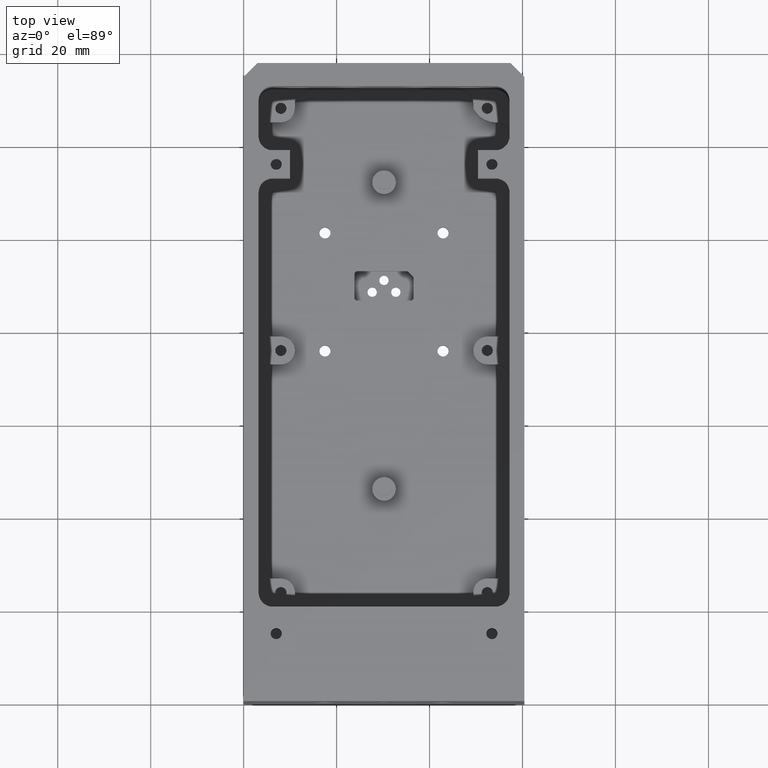
[diagram: clean part render]
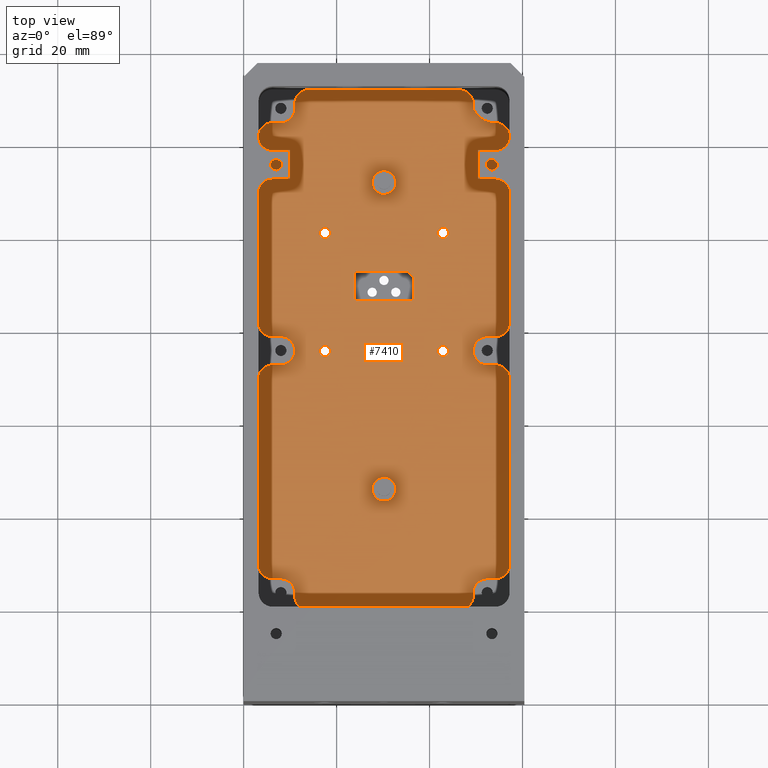
[diagram: same view with one face highlighted and labeled with its STEP entity id]
A machine part, top view. The second image highlights one B-rep face of the part: STEP entity #7410.
In plain terms, the highlighted planar face has unit normal (-0, 0, 1).
Its self-contained STEP definition (entity closure, byte-faithful):
#84 = CIRCLE ( 'NONE', #30902, 0.6000000000000033100 ) ;
#106 = AXIS2_PLACEMENT_3D ( 'NONE', #25461, #6044, #28690 ) ;
#255 = AXIS2_PLACEMENT_3D ( 'NONE', #16797, #39413, #20041 ) ;
#435 = VERTEX_POINT ( 'NONE', #30624 ) ;
#486 = VECTOR ( 'NONE', #12508, 1000.000000000000000 ) ;
#530 = ORIENTED_EDGE ( 'NONE', *, *, #22711, .F. ) ;
#577 = DIRECTION ( 'NONE',  ( 1.000000000000000000, 0.0000000000000000000, 0.0000000000000000000 ) ) ;
#620 = ORIENTED_EDGE ( 'NONE', *, *, #9585, .F. ) ;
#791 = AXIS2_PLACEMENT_3D ( 'NONE', #8391, #31015, #11651 ) ;
#970 = DIRECTION ( 'NONE',  ( 1.000000000000000000, 0.0000000000000000000, 0.0000000000000000000 ) ) ;
#1018 = DIRECTION ( 'NONE',  ( 0.0000000000000000000, 0.0000000000000000000, 1.000000000000000000 ) ) ;
#1048 = DIRECTION ( 'NONE',  ( 0.0000000000000000000, -0.0000000000000000000, -1.000000000000000000 ) ) ;
#1049 = AXIS2_PLACEMENT_3D ( 'NONE', #13863, #36470, #17111 ) ;
#1189 = EDGE_CURVE ( 'NONE', #34276, #34067, #9284, .T. ) ;
#1262 = CARTESIAN_POINT ( 'NONE',  ( 35.95000000000000300, 91.72147186254780100, -42.59999999999999400 ) ) ;
#1431 = EDGE_CURVE ( 'NONE', #23782, #24907, #8789, .T. ) ;
#1545 = DIRECTION ( 'NONE',  ( -0.0000000000000000000, 0.0000000000000000000, 1.000000000000000000 ) ) ;
#1676 = LINE ( 'NONE', #4961, #35088 ) ;
#1727 = VERTEX_POINT ( 'NONE', #37510 ) ;
#1757 = DIRECTION ( 'NONE',  ( -0.0000000000000000000, 0.0000000000000000000, 1.000000000000000000 ) ) ;
#1781 = FACE_OUTER_BOUND ( 'NONE', #18252, .T. ) ;
#1788 = ORIENTED_EDGE ( 'NONE', *, *, #1431, .F. ) ;
#2025 = VERTEX_POINT ( 'NONE', #19506 ) ;
#2106 = EDGE_CURVE ( 'NONE', #7414, #38659, #6684, .T. ) ;
#2113 = ORIENTED_EDGE ( 'NONE', *, *, #38163, .T. ) ;
#2324 = LINE ( 'NONE', #3760, #35773 ) ;
#2516 = VECTOR ( 'NONE', #16301, 1000.000000000000000 ) ;
#2635 = CARTESIAN_POINT ( 'NONE',  ( 35.94999999999999600, 86.88999999997165000, -42.59999999999999400 ) ) ;
#2731 = DIRECTION ( 'NONE',  ( 1.000000000000000000, 0.0000000000000000000, 0.0000000000000000000 ) ) ;
#2843 = EDGE_CURVE ( 'NONE', #25429, #38102, #21865, .T. ) ;
#2937 = CARTESIAN_POINT ( 'NONE',  ( 24.44999999999999900, 92.63999999997165000, -42.59999999999999400 ) ) ;
#2973 = ORIENTED_EDGE ( 'NONE', *, *, #14207, .F. ) ;
#3038 = EDGE_CURVE ( 'NONE', #1727, #25905, #14792, .T. ) ;
#3066 = DIRECTION ( 'NONE',  ( -0.0000000000000000000, 0.0000000000000000000, 1.000000000000000000 ) ) ;
#3185 = ORIENTED_EDGE ( 'NONE', *, *, #38572, .F. ) ;
#3376 = CARTESIAN_POINT ( 'NONE',  ( 24.44999999999999900, 87.48999999997165800, -42.59999999999999400 ) ) ;
#3457 = EDGE_CURVE ( 'NONE', #36702, #25780, #38997, .T. ) ;
#3491 = DIRECTION ( 'NONE',  ( 0.0000000000000000000, 1.000000000000000000, 0.0000000000000000000 ) ) ;
#3619 = EDGE_CURVE ( 'NONE', #9269, #20713, #9127, .T. ) ;
#3670 = VECTOR ( 'NONE', #7356, 1000.000000000000000 ) ;
#3760 = CARTESIAN_POINT ( 'NONE',  ( 3.200000000000017100, 4.829856545643110200E-016, -42.59999999999999400 ) ) ;
#3808 = VERTEX_POINT ( 'NONE', #23378 ) ;
#3809 = FACE_BOUND ( 'NONE', #13916, .T. ) ;
#3830 = VECTOR ( 'NONE', #19050, 1000.000000000000000 ) ;
#3901 = VERTEX_POINT ( 'NONE', #27334 ) ;
#4278 = CIRCLE ( 'NONE', #31151, 3.000000000000000900 ) ;
#4547 = DIRECTION ( 'NONE',  ( 1.000000000000000000, 0.0000000000000000000, 0.0000000000000000000 ) ) ;
#4561 = AXIS2_PLACEMENT_3D ( 'NONE', #20985, #1545, #24240 ) ;
#4596 = CIRCLE ( 'NONE', #22683, 0.6000000000000033100 ) ;
#4666 = CARTESIAN_POINT ( 'NONE',  ( 6.200000000000002000, 73.09999999999996600, -42.59999999999999400 ) ) ;
#4684 = VERTEX_POINT ( 'NONE', #10005 ) ;
#4951 = CIRCLE ( 'NONE', #22733, 2.540000000000000500 ) ;
#4961 = CARTESIAN_POINT ( 'NONE',  ( 57.20000000000000300, 0.0000000000000000000, -42.59999999999999400 ) ) ;
#5476 = DIRECTION ( 'NONE',  ( -1.000000000000000000, 1.899207940138112900E-015, 0.0000000000000000000 ) ) ;
#5475 = DIRECTION ( 'NONE',  ( 1.000000000000000000, 0.0000000000000000000, 0.0000000000000000000 ) ) ;
#5487 = EDGE_CURVE ( 'NONE', #24482, #24927, #26722, .T. ) ;
#5590 = ORIENTED_EDGE ( 'NONE', *, *, #20575, .T. ) ;
#5899 = EDGE_CURVE ( 'NONE', #7269, #38102, #32763, .T. ) ;
#6044 = DIRECTION ( 'NONE',  ( 0.0000000000000000000, 0.0000000000000000000, 1.000000000000000000 ) ) ;
#6183 = CARTESIAN_POINT ( 'NONE',  ( 57.20000000000000300, 122.1999999999999700, -42.59999999999999400 ) ) ;
#6220 = DIRECTION ( 'NONE',  ( 1.000000000000000000, 0.0000000000000000000, 0.0000000000000000000 ) ) ;
#6253 = ORIENTED_EDGE ( 'NONE', *, *, #25276, .F. ) ;
#6266 = DIRECTION ( 'NONE',  ( 0.0000000000000000000, -1.000000000000000000, 0.0000000000000000000 ) ) ;
#6307 = CIRCLE ( 'NONE', #13587, 1.200000000000003100 ) ;
#6375 = ORIENTED_EDGE ( 'NONE', *, *, #6790, .T. ) ;
#6468 = CARTESIAN_POINT ( 'NONE',  ( 35.45573593128807500, 93.06426406868358500, -42.59999999999999400 ) ) ;
#6514 = CARTESIAN_POINT ( 'NONE',  ( 8.000000000000005300, 79.09999999999998000, -42.59999999999999400 ) ) ;
#6651 = DIRECTION ( 'NONE',  ( 1.000000000000000000, 0.0000000000000000000, 0.0000000000000000000 ) ) ;
#6684 = CIRCLE ( 'NONE', #1049, 2.540000000000000500 ) ;
#6790 = EDGE_CURVE ( 'NONE', #7269, #24482, #26636, .T. ) ;
#6936 = ORIENTED_EDGE ( 'NONE', *, *, #24807, .F. ) ;
#6990 = VERTEX_POINT ( 'NONE', #7523 ) ;
#6999 = LINE ( 'NONE', #15955, #15624 ) ;
#7053 = CARTESIAN_POINT ( 'NONE',  ( 3.200000000000004600, 82.09999999999998000, -42.59999999999999400 ) ) ;
#7130 = CARTESIAN_POINT ( 'NONE',  ( 52.37321374946373000, 23.99999999999996800, -42.59999999999999400 ) ) ;
#7144 = LINE ( 'NONE', #38255, #40584 ) ;
#7160 = EDGE_CURVE ( 'NONE', #16941, #16858, #17554, .T. ) ;
#7196 = DIRECTION ( 'NONE',  ( -0.0000000000000000000, 0.0000000000000000000, 1.000000000000000000 ) ) ;
#7269 = VERTEX_POINT ( 'NONE', #31678 ) ;
#7294 = DIRECTION ( 'NONE',  ( 0.0000000000000000000, -0.0000000000000000000, -1.000000000000000000 ) ) ;
#7356 = DIRECTION ( 'NONE',  ( 0.0000000000000000000, -1.000000000000000000, 0.0000000000000000000 ) ) ;
#7410 = ADVANCED_FACE ( 'NONE', ( #36222, #3809, #27635, #11447, #19025, #10403, #1781, #35190 ), #41875, .T. ) ;
#7414 = VERTEX_POINT ( 'NONE', #19246 ) ;
#7517 = VERTEX_POINT ( 'NONE', #30450 ) ;
#7523 = CARTESIAN_POINT ( 'NONE',  ( 11.00000000000000700, 76.09999999999998000, -42.59999999999999400 ) ) ;
#7533 = EDGE_CURVE ( 'NONE', #27676, #435, #41789, .T. ) ;
#7610 = ORIENTED_EDGE ( 'NONE', *, *, #8248, .T. ) ;
#7773 = LINE ( 'NONE', #26171, #33591 ) ;
#7867 = VERTEX_POINT ( 'NONE', #17001 ) ;
#7869 = AXIS2_PLACEMENT_3D ( 'NONE', #31785, #35072, #31929 ) ;
#7878 = ORIENTED_EDGE ( 'NONE', *, *, #11898, .F. ) ;
#7899 = ORIENTED_EDGE ( 'NONE', *, *, #23798, .F. ) ;
#7955 = CARTESIAN_POINT ( 'NONE',  ( 49.40000000000001300, 24.39999999999997000, -42.59999999999999400 ) ) ;
#8122 = CARTESIAN_POINT ( 'NONE',  ( 14.00000000000000200, 129.2999999999999800, -42.59999999999999400 ) ) ;
#8235 = ORIENTED_EDGE ( 'NONE', *, *, #42058, .T. ) ;
#8248 = EDGE_CURVE ( 'NONE', #22108, #25429, #4278, .T. ) ;
#8276 = ORIENTED_EDGE ( 'NONE', *, *, #3619, .T. ) ;
#8337 = VERTEX_POINT ( 'NONE', #11146 ) ;
#8391 = CARTESIAN_POINT ( 'NONE',  ( 6.200000000000002000, 70.09999999999996600, -42.59999999999999400 ) ) ;
#8404 = ORIENTED_EDGE ( 'NONE', *, *, #31229, .F. ) ;
#8789 = CIRCLE ( 'NONE', #9188, 3.000000000000002700 ) ;
#8894 = DIRECTION ( 'NONE',  ( 0.0000000000000000000, 0.0000000000000000000, 1.000000000000000000 ) ) ;
#8957 = EDGE_CURVE ( 'NONE', #3808, #22108, #10827, .T. ) ;
#9125 = AXIS2_PLACEMENT_3D ( 'NONE', #26659, #7294, #29907 ) ;
#9127 = LINE ( 'NONE', #28619, #486 ) ;
#9188 = AXIS2_PLACEMENT_3D ( 'NONE', #34660, #14463, #39335 ) ;
#9257 = CIRCLE ( 'NONE', #41432, 3.000000000000002700 ) ;
#9269 = VERTEX_POINT ( 'NONE', #28210 ) ;
#9284 = CIRCLE ( 'NONE', #7869, 1.200000000000003100 ) ;
#9501 = VERTEX_POINT ( 'NONE', #23235 ) ;
#9585 = EDGE_CURVE ( 'NONE', #31878, #13632, #84, .T. ) ;
#9699 = VERTEX_POINT ( 'NONE', #39488 ) ;
#9736 = AXIS2_PLACEMENT_3D ( 'NONE', #7130, #29744, #10379 ) ;
#9753 = EDGE_LOOP ( 'NONE', ( #40256, #21975 ) ) ;
#9972 = CARTESIAN_POINT ( 'NONE',  ( 54.20000000000000300, 125.1999999999999700, -42.59999999999999400 ) ) ;
#10005 = CARTESIAN_POINT ( 'NONE',  ( 35.03147186257614700, 93.23999999997164400, -42.59999999999999400 ) ) ;
#10106 = AXIS2_PLACEMENT_3D ( 'NONE', #17254, #39879, #20488 ) ;
#10161 = LINE ( 'NONE', #19159, #16752 ) ;
#10228 = CARTESIAN_POINT ( 'NONE',  ( 6.173213749463703200, 29.99999999999997500, -42.59999999999999400 ) ) ;
#10379 = DIRECTION ( 'NONE',  ( 1.000000000000000000, 0.0000000000000000000, 0.0000000000000000000 ) ) ;
#10403 = FACE_BOUND ( 'NONE', #16344, .T. ) ;
#10463 = CARTESIAN_POINT ( 'NONE',  ( 11.00000000000000000, 128.1999999999999900, -42.59999999999999400 ) ) ;
#10688 = DIRECTION ( 'NONE',  ( 0.0000000000000000000, -0.0000000000000000000, -1.000000000000000000 ) ) ;
#10827 = LINE ( 'NONE', #20166, #12859 ) ;
#11009 = CARTESIAN_POINT ( 'NONE',  ( 42.89999999999999900, 76.09999999999998000, -42.59999999999999400 ) ) ;
#11084 = CIRCLE ( 'NONE', #33148, 1.200000000000003100 ) ;
#11146 = CARTESIAN_POINT ( 'NONE',  ( 44.10000000000000100, 101.4999999999999900, -42.59999999999999400 ) ) ;
#11153 = ORIENTED_EDGE ( 'NONE', *, *, #14961, .F. ) ;
#11163 = EDGE_CURVE ( 'NONE', #27676, #15118, #10161, .T. ) ;
#11227 = CIRCLE ( 'NONE', #41654, 2.540000000000000500 ) ;
#11265 = CIRCLE ( 'NONE', #31067, 3.000000000000000900 ) ;
#11307 = CARTESIAN_POINT ( 'NONE',  ( 30.19999999999999900, 112.2999999999999700, -42.59999999999999400 ) ) ;
#11321 = CARTESIAN_POINT ( 'NONE',  ( 23.84999999999999800, 92.63999999997165000, -42.59999999999999400 ) ) ;
#11343 = EDGE_CURVE ( 'NONE', #16941, #36702, #30919, .T. ) ;
#11385 = DIRECTION ( 'NONE',  ( 1.000000000000000000, 0.0000000000000000000, 0.0000000000000000000 ) ) ;
#11447 = FACE_BOUND ( 'NONE', #40938, .T. ) ;
#11474 = LINE ( 'NONE', #38266, #3830 ) ;
#11489 = EDGE_CURVE ( 'NONE', #20036, #9269, #26856, .T. ) ;
#11529 = CARTESIAN_POINT ( 'NONE',  ( 0.0000000000000000000, 20.29999999999997200, -42.59999999999999400 ) ) ;
#11651 = DIRECTION ( 'NONE',  ( 1.000000000000000000, 0.0000000000000000000, 0.0000000000000000000 ) ) ;
#11776 = CARTESIAN_POINT ( 'NONE',  ( 6.200000000000001100, 122.1999999999999700, -42.59999999999999400 ) ) ;
#11870 = CARTESIAN_POINT ( 'NONE',  ( 0.0000000000000000000, 73.09999999999996600, -42.59999999999999400 ) ) ;
#11898 = EDGE_CURVE ( 'NONE', #25385, #38111, #15697, .T. ) ;
#11951 = CARTESIAN_POINT ( 'NONE',  ( 17.50000000000000400, 76.09999999999998000, -42.59999999999999400 ) ) ;
#11987 = CIRCLE ( 'NONE', #106, 2.540000000000000500 ) ;
#11994 = VERTEX_POINT ( 'NONE', #36314 ) ;
#12126 = AXIS2_PLACEMENT_3D ( 'NONE', #26577, #7196, #29817 ) ;
#12231 = VECTOR ( 'NONE', #23299, 1000.000000000000000 ) ;
#12292 = CARTESIAN_POINT ( 'NONE',  ( 42.89999999999999900, 101.4999999999999900, -42.59999999999999400 ) ) ;
#12351 = AXIS2_PLACEMENT_3D ( 'NONE', #10228, #32859, #13508 ) ;
#12473 = CARTESIAN_POINT ( 'NONE',  ( 42.89999999999999900, 76.09999999999998000, -42.59999999999999400 ) ) ;
#12508 = DIRECTION ( 'NONE',  ( 1.509330170513463700E-016, -1.000000000000000000, 0.0000000000000000000 ) ) ;
#12627 = CARTESIAN_POINT ( 'NONE',  ( 8.000000000000001800, 76.09999999999998000, -42.59999999999999400 ) ) ;
#12856 = VERTEX_POINT ( 'NONE', #32384 ) ;
#12859 = VECTOR ( 'NONE', #39549, 1000.000000000000000 ) ;
#13021 = ORIENTED_EDGE ( 'NONE', *, *, #40786, .T. ) ;
#13079 = EDGE_CURVE ( 'NONE', #8337, #35330, #36448, .T. ) ;
#13168 = CARTESIAN_POINT ( 'NONE',  ( 7.999999999999998200, 128.1999999999999900, -42.59999999999999400 ) ) ;
#13288 = VERTEX_POINT ( 'NONE', #39150 ) ;
#13453 = EDGE_CURVE ( 'NONE', #21642, #23270, #34895, .T. ) ;
#13459 = CIRCLE ( 'NONE', #38223, 3.000000000000002700 ) ;
#13498 = CARTESIAN_POINT ( 'NONE',  ( 0.0000000000000000000, 132.2999999999999800, -42.59999999999999400 ) ) ;
#13508 = DIRECTION ( 'NONE',  ( 1.000000000000000000, 1.156482317317870300E-015, 0.0000000000000000000 ) ) ;
#13587 = AXIS2_PLACEMENT_3D ( 'NONE', #11951, #34599, #15220 ) ;
#13632 = VERTEX_POINT ( 'NONE', #40723 ) ;
#13863 = CARTESIAN_POINT ( 'NONE',  ( 30.19999999999999900, 112.2999999999999700, -42.59999999999999400 ) ) ;
#13884 = CARTESIAN_POINT ( 'NONE',  ( 49.39999999999999900, 0.0000000000000000000, -42.59999999999999400 ) ) ;
#13916 = EDGE_LOOP ( 'NONE', ( #26566, #7899 ) ) ;
#14207 = EDGE_CURVE ( 'NONE', #24515, #28957, #6999, .T. ) ;
#14278 = DIRECTION ( 'NONE',  ( 1.000000000000000000, 0.0000000000000000000, 0.0000000000000000000 ) ) ;
#14330 = EDGE_CURVE ( 'NONE', #31931, #24927, #20937, .T. ) ;
#14463 = DIRECTION ( 'NONE',  ( 0.0000000000000000000, -0.0000000000000000000, -1.000000000000000000 ) ) ;
#14557 = VERTEX_POINT ( 'NONE', #29457 ) ;
#14581 = DIRECTION ( 'NONE',  ( 1.000000000000000000, 0.0000000000000000000, 0.0000000000000000000 ) ) ;
#14597 = DIRECTION ( 'NONE',  ( 6.736790197968199100E-016, -1.000000000000000000, 0.0000000000000000000 ) ) ;
#14637 = EDGE_CURVE ( 'NONE', #3808, #20713, #37616, .T. ) ;
#14745 = ORIENTED_EDGE ( 'NONE', *, *, #7160, .F. ) ;
#14748 = AXIS2_PLACEMENT_3D ( 'NONE', #39392, #20021, #577 ) ;
#14758 = CARTESIAN_POINT ( 'NONE',  ( 46.39999999999999900, 129.2999999999999800, -42.59999999999999400 ) ) ;
#14782 = CARTESIAN_POINT ( 'NONE',  ( 57.20000000000000300, 29.99999999999997200, -42.59999999999999400 ) ) ;
#14792 = LINE ( 'NONE', #37577, #39551 ) ;
#14846 = VECTOR ( 'NONE', #29209, 1000.000000000000100 ) ;
#14952 = EDGE_CURVE ( 'NONE', #28957, #2025, #29455, .T. ) ;
#14961 = EDGE_CURVE ( 'NONE', #38302, #25385, #38077, .T. ) ;
#14969 = EDGE_CURVE ( 'NONE', #1727, #32334, #11265, .T. ) ;
#15007 = AXIS2_PLACEMENT_3D ( 'NONE', #11009, #33644, #14278 ) ;
#15040 = DIRECTION ( 'NONE',  ( 1.000000000000000000, 0.0000000000000000000, 0.0000000000000000000 ) ) ;
#15118 = VERTEX_POINT ( 'NONE', #10463 ) ;
#15174 = ORIENTED_EDGE ( 'NONE', *, *, #2106, .F. ) ;
#15220 = DIRECTION ( 'NONE',  ( 1.000000000000000000, 0.0000000000000000000, 0.0000000000000000000 ) ) ;
#15425 = LINE ( 'NONE', #32545, #23008 ) ;
#15440 = CARTESIAN_POINT ( 'NONE',  ( 11.00000000000001200, 23.29999999999996900, -42.59999999999999400 ) ) ;
#15488 = CARTESIAN_POINT ( 'NONE',  ( 57.20000000000000300, 82.09999999999998000, -42.59999999999999400 ) ) ;
#15511 = ORIENTED_EDGE ( 'NONE', *, *, #7533, .F. ) ;
#15559 = DIRECTION ( 'NONE',  ( 1.000000000000000000, 0.0000000000000000000, 0.0000000000000000000 ) ) ;
#15624 = VECTOR ( 'NONE', #28949, 1000.000000000000000 ) ;
#15640 = DIRECTION ( 'NONE',  ( -1.000000000000000000, -0.0000000000000000000, -0.0000000000000000000 ) ) ;
#15697 = LINE ( 'NONE', #11321, #40519 ) ;
#15727 = DIRECTION ( 'NONE',  ( 1.000000000000000000, 0.0000000000000000000, 0.0000000000000000000 ) ) ;
#15784 = EDGE_CURVE ( 'NONE', #4684, #38302, #7144, .T. ) ;
#15866 = CARTESIAN_POINT ( 'NONE',  ( 35.94999999999999600, 87.48999999997167300, -42.59999999999999400 ) ) ;
#15889 = DIRECTION ( 'NONE',  ( 1.000000000000000000, 0.0000000000000000000, 0.0000000000000000000 ) ) ;
#15955 = CARTESIAN_POINT ( 'NONE',  ( 24.44999999999999900, 86.88999999997165000, -42.59999999999999400 ) ) ;
#16104 = CARTESIAN_POINT ( 'NONE',  ( 49.40000000000001300, 23.29999999999996200, -42.59999999999999400 ) ) ;
#16219 = CARTESIAN_POINT ( 'NONE',  ( 11.00000000000001200, 24.39999999999997000, -42.59999999999999400 ) ) ;
#16301 = DIRECTION ( 'NONE',  ( 1.000000000000000000, 0.0000000000000000000, 0.0000000000000000000 ) ) ;
#16344 = EDGE_LOOP ( 'NONE', ( #620, #530, #20292, #2973, #36975, #7878, #11153, #20234, #36398, #22139 ) ) ;
#16359 = EDGE_CURVE ( 'NONE', #15118, #11994, #24920, .T. ) ;
#16413 = DIRECTION ( 'NONE',  ( 1.000000000000000000, 0.0000000000000000000, 0.0000000000000000000 ) ) ;
#16545 = EDGE_CURVE ( 'NONE', #38659, #7414, #11227, .T. ) ;
#16750 = ORIENTED_EDGE ( 'NONE', *, *, #14637, .F. ) ;
#16752 = VECTOR ( 'NONE', #6266, 1000.000000000000000 ) ;
#16797 = CARTESIAN_POINT ( 'NONE',  ( 54.19999999999999600, 29.99999999999997200, -42.59999999999999400 ) ) ;
#16858 = VERTEX_POINT ( 'NONE', #35297 ) ;
#16941 = VERTEX_POINT ( 'NONE', #20022 ) ;
#16979 = CARTESIAN_POINT ( 'NONE',  ( 30.19999999999999900, 46.29999999999996900, -42.59999999999999400 ) ) ;
#17001 = CARTESIAN_POINT ( 'NONE',  ( 32.73999999999999500, 46.29999999999996900, -42.59999999999999400 ) ) ;
#17013 = VERTEX_POINT ( 'NONE', #36849 ) ;
#17111 = DIRECTION ( 'NONE',  ( 1.000000000000000000, 0.0000000000000000000, 0.0000000000000000000 ) ) ;
#17243 = EDGE_CURVE ( 'NONE', #38111, #24515, #4596, .T. ) ;
#17244 = EDGE_CURVE ( 'NONE', #17013, #11994, #20801, .T. ) ;
#17254 = CARTESIAN_POINT ( 'NONE',  ( 8.000000000000001800, 76.09999999999998000, -42.59999999999999400 ) ) ;
#17554 = CIRCLE ( 'NONE', #4561, 3.000000000000002700 ) ;
#17877 = CARTESIAN_POINT ( 'NONE',  ( 46.40000000000001300, 20.29999999999997200, -42.59999999999999400 ) ) ;
#17916 = ORIENTED_EDGE ( 'NONE', *, *, #3038, .T. ) ;
#17932 = DIRECTION ( 'NONE',  ( 1.000000000000000000, 0.0000000000000000000, 0.0000000000000000000 ) ) ;
#18029 = CARTESIAN_POINT ( 'NONE',  ( 24.44999999999999900, 86.88999999997165000, -42.59999999999999400 ) ) ;
#18030 = DIRECTION ( 'NONE',  ( 1.000000000000000000, 0.0000000000000000000, 0.0000000000000000000 ) ) ;
#18252 = EDGE_LOOP ( 'NONE', ( #8404, #3185, #14745, #18369, #33262, #27007, #1788, #2113, #29511, #8235, #13021, #15511, #18721, #26852, #35133, #21576, #5590, #37563, #17916, #30364, #6936, #25634, #36392, #8276, #16750, #32079, #7610, #41997, #36028, #6375, #27740, #41203, #20133, #6253, #29194, #23776 ) ) ;
#18369 = ORIENTED_EDGE ( 'NONE', *, *, #11343, .T. ) ;
#18407 = CARTESIAN_POINT ( 'NONE',  ( 41.70000000000000300, 76.09999999999998000, -42.59999999999999400 ) ) ;
#18423 = ORIENTED_EDGE ( 'NONE', *, *, #35164, .F. ) ;
#18535 = ORIENTED_EDGE ( 'NONE', *, *, #13453, .F. ) ;
#18721 = ORIENTED_EDGE ( 'NONE', *, *, #11163, .T. ) ;
#18877 = LINE ( 'NONE', #28130, #35054 ) ;
#18965 = DIRECTION ( 'NONE',  ( 0.0000000000000000000, -0.0000000000000000000, -1.000000000000000000 ) ) ;
#19025 = FACE_BOUND ( 'NONE', #37063, .T. ) ;
#19050 = DIRECTION ( 'NONE',  ( 1.000000000000000000, 0.0000000000000000000, 0.0000000000000000000 ) ) ;
#19058 = EDGE_LOOP ( 'NONE', ( #27974, #15174 ) ) ;
#19124 = DIRECTION ( 'NONE',  ( 1.000000000000000000, 0.0000000000000000000, 0.0000000000000000000 ) ) ;
#19159 = CARTESIAN_POINT ( 'NONE',  ( 11.00000000000000000, 0.0000000000000000000, -42.59999999999999400 ) ) ;
#19246 = CARTESIAN_POINT ( 'NONE',  ( 32.73999999999999500, 112.2999999999999700, -42.59999999999999400 ) ) ;
#19259 = CARTESIAN_POINT ( 'NONE',  ( 6.200000000000001100, 82.09999999999998000, -42.59999999999999400 ) ) ;
#19494 = EDGE_CURVE ( 'NONE', #12856, #31931, #23198, .T. ) ;
#19506 = CARTESIAN_POINT ( 'NONE',  ( 36.54999999999999700, 87.48999999999998100, -42.59999999999999400 ) ) ;
#19549 = CARTESIAN_POINT ( 'NONE',  ( 0.0000000000000000000, 125.1999999999999700, -42.59999999999999400 ) ) ;
#20021 = DIRECTION ( 'NONE',  ( 0.0000000000000000000, 0.0000000000000000000, 1.000000000000000000 ) ) ;
#20022 = CARTESIAN_POINT ( 'NONE',  ( 52.40000000000000600, 79.09999999999998000, -42.59999999999999400 ) ) ;
#20036 = VERTEX_POINT ( 'NONE', #4666 ) ;
#20041 = DIRECTION ( 'NONE',  ( 1.000000000000000000, 0.0000000000000000000, 0.0000000000000000000 ) ) ;
#20133 = ORIENTED_EDGE ( 'NONE', *, *, #19494, .F. ) ;
#20166 = CARTESIAN_POINT ( 'NONE',  ( 0.0000000000000000000, 26.99999999999997200, -42.59999999999999400 ) ) ;
#20207 = DIRECTION ( 'NONE',  ( 1.000000000000000000, 0.0000000000000000000, 0.0000000000000000000 ) ) ;
#20234 = ORIENTED_EDGE ( 'NONE', *, *, #15784, .F. ) ;
#20239 = EDGE_CURVE ( 'NONE', #32169, #4684, #36305, .T. ) ;
#20242 = CIRCLE ( 'NONE', #26082, 1.200000000000003100 ) ;
#20292 = ORIENTED_EDGE ( 'NONE', *, *, #14952, .F. ) ;
#20402 = ORIENTED_EDGE ( 'NONE', *, *, #31585, .F. ) ;
#20429 = VERTEX_POINT ( 'NONE', #33057 ) ;
#20465 = CARTESIAN_POINT ( 'NONE',  ( 17.50000000000000400, 76.09999999999998000, -42.59999999999999400 ) ) ;
#20488 = DIRECTION ( 'NONE',  ( 1.000000000000000000, 0.0000000000000000000, 0.0000000000000000000 ) ) ;
#20490 = CARTESIAN_POINT ( 'NONE',  ( 8.026786250536309500, 23.99999999999997200, -42.59999999999999400 ) ) ;
#20559 = CARTESIAN_POINT ( 'NONE',  ( 54.20000000000000300, 79.09999999999998000, -42.59999999999999400 ) ) ;
#20575 = EDGE_CURVE ( 'NONE', #33962, #32334, #2324, .T. ) ;
#20585 = CARTESIAN_POINT ( 'NONE',  ( 57.20000000000000300, 70.09999999999996600, -42.59999999999999400 ) ) ;
#20713 = VERTEX_POINT ( 'NONE', #21047 ) ;
#20801 = LINE ( 'NONE', #19549, #2516 ) ;
#20937 = LINE ( 'NONE', #33203, #29503 ) ;
#20985 = CARTESIAN_POINT ( 'NONE',  ( 52.40000000000000600, 76.09999999999998000, -42.59999999999999400 ) ) ;
#21047 = CARTESIAN_POINT ( 'NONE',  ( 3.200000000000012600, 29.59999999999988400, -42.59999999999999400 ) ) ;
#21068 = CARTESIAN_POINT ( 'NONE',  ( 8.000000000000007100, 73.09999999999996600, -42.59999999999999400 ) ) ;
#21148 = VERTEX_POINT ( 'NONE', #14782 ) ;
#21176 = CARTESIAN_POINT ( 'NONE',  ( 54.20000000000000300, 82.09999999999998000, -42.59999999999999400 ) ) ;
#21576 = ORIENTED_EDGE ( 'NONE', *, *, #26201, .T. ) ;
#21642 = VERTEX_POINT ( 'NONE', #18407 ) ;
#21865 = LINE ( 'NONE', #39417, #12231 ) ;
#21946 = CARTESIAN_POINT ( 'NONE',  ( 23.84999999999999800, 87.48999999997165800, -42.59999999999999400 ) ) ;
#21975 = ORIENTED_EDGE ( 'NONE', *, *, #29159, .F. ) ;
#22045 = CARTESIAN_POINT ( 'NONE',  ( 3.199999999999998400, 122.1999999999999700, -42.59999999999999400 ) ) ;
#22108 = VERTEX_POINT ( 'NONE', #35568 ) ;
#22139 = ORIENTED_EDGE ( 'NONE', *, *, #25443, .F. ) ;
#22163 = DIRECTION ( 'NONE',  ( 0.0000000000000000000, 0.0000000000000000000, 1.000000000000000000 ) ) ;
#22371 = AXIS2_PLACEMENT_3D ( 'NONE', #15866, #38473, #19124 ) ;
#22498 = CARTESIAN_POINT ( 'NONE',  ( 0.0000000000000000000, 0.0000000000000000000, -42.59999999999999400 ) ) ;
#22511 = DIRECTION ( 'NONE',  ( 1.000000000000000000, 0.0000000000000000000, 0.0000000000000000000 ) ) ;
#22683 = AXIS2_PLACEMENT_3D ( 'NONE', #3376, #26058, #6651 ) ;
#22711 = EDGE_CURVE ( 'NONE', #2025, #31878, #15425, .T. ) ;
#22733 = AXIS2_PLACEMENT_3D ( 'NONE', #16979, #39589, #20207 ) ;
#23008 = VECTOR ( 'NONE', #32688, 1000.000000000000000 ) ;
#23198 = CIRCLE ( 'NONE', #9736, 3.000000000000009800 ) ;
#23235 = CARTESIAN_POINT ( 'NONE',  ( 49.39999999999999900, 128.1999999999999900, -42.59999999999999400 ) ) ;
#23270 = VERTEX_POINT ( 'NONE', #33088 ) ;
#23299 = DIRECTION ( 'NONE',  ( 0.0000000000000000000, -1.000000000000000000, 0.0000000000000000000 ) ) ;
#23378 = CARTESIAN_POINT ( 'NONE',  ( 6.173213749463703200, 26.99999999999997200, -42.59999999999999400 ) ) ;
#23478 = LINE ( 'NONE', #13498, #24529 ) ;
#23650 = VERTEX_POINT ( 'NONE', #41818 ) ;
#23674 = CARTESIAN_POINT ( 'NONE',  ( 0.0000000000000000000, 79.09999999999998000, -42.59999999999999400 ) ) ;
#23713 = DIRECTION ( 'NONE',  ( 1.000000000000000000, 0.0000000000000000000, 0.0000000000000000000 ) ) ;
#23740 = DIRECTION ( 'NONE',  ( 1.000000000000000000, -1.156482317317871100E-015, 0.0000000000000000000 ) ) ;
#23776 = ORIENTED_EDGE ( 'NONE', *, *, #41081, .T. ) ;
#23782 = VERTEX_POINT ( 'NONE', #9972 ) ;
#23798 = EDGE_CURVE ( 'NONE', #35330, #8337, #32030, .T. ) ;
#23875 = VERTEX_POINT ( 'NONE', #20585 ) ;
#23954 = DIRECTION ( 'NONE',  ( 0.0000000000000000000, 0.0000000000000000000, 1.000000000000000000 ) ) ;
#24086 = CARTESIAN_POINT ( 'NONE',  ( 11.00000000000000000, 129.2999999999999800, -42.59999999999999400 ) ) ;
#24240 = DIRECTION ( 'NONE',  ( 1.000000000000000000, 0.0000000000000000000, 0.0000000000000000000 ) ) ;
#24368 = DIRECTION ( 'NONE',  ( 0.0000000000000000000, 1.000000000000000000, 0.0000000000000000000 ) ) ;
#24435 = DIRECTION ( 'NONE',  ( 1.000000000000000000, 0.0000000000000000000, 0.0000000000000000000 ) ) ;
#24482 = VERTEX_POINT ( 'NONE', #17877 ) ;
#24496 = AXIS2_PLACEMENT_3D ( 'NONE', #12292, #34925, #15559 ) ;
#24515 = VERTEX_POINT ( 'NONE', #18029 ) ;
#24529 = VECTOR ( 'NONE', #36114, 1000.000000000000000 ) ;
#24807 = EDGE_CURVE ( 'NONE', #38346, #6990, #39051, .T. ) ;
#24907 = VERTEX_POINT ( 'NONE', #6183 ) ;
#24920 = CIRCLE ( 'NONE', #32967, 3.000000000000000900 ) ;
#24927 = VERTEX_POINT ( 'NONE', #16104 ) ;
#25276 = EDGE_CURVE ( 'NONE', #13288, #12856, #18877, .T. ) ;
#25385 = VERTEX_POINT ( 'NONE', #38415 ) ;
#25429 = VERTEX_POINT ( 'NONE', #16219 ) ;
#25443 = EDGE_CURVE ( 'NONE', #13632, #32169, #33028, .T. ) ;
#25461 = CARTESIAN_POINT ( 'NONE',  ( 30.19999999999999900, 46.29999999999996900, -42.59999999999999400 ) ) ;
#25623 = DIRECTION ( 'NONE',  ( 0.0000000000000000000, 0.0000000000000000000, 1.000000000000000000 ) ) ;
#25634 = ORIENTED_EDGE ( 'NONE', *, *, #35977, .F. ) ;
#25740 = DIRECTION ( 'NONE',  ( 1.000000000000000000, 0.0000000000000000000, 0.0000000000000000000 ) ) ;
#25780 = VERTEX_POINT ( 'NONE', #15488 ) ;
#25905 = VERTEX_POINT ( 'NONE', #6514 ) ;
#25929 = AXIS2_PLACEMENT_3D ( 'NONE', #12473, #35093, #15727 ) ;
#25979 = CARTESIAN_POINT ( 'NONE',  ( 36.37426406871193100, 92.14573593125972200, -42.59999999999999400 ) ) ;
#26058 = DIRECTION ( 'NONE',  ( 0.0000000000000000000, 0.0000000000000000000, 1.000000000000000000 ) ) ;
#26082 = AXIS2_PLACEMENT_3D ( 'NONE', #20465, #1018, #23713 ) ;
#26171 = CARTESIAN_POINT ( 'NONE',  ( 57.20000000000000300, 0.0000000000000000000, -42.59999999999999400 ) ) ;
#26201 = EDGE_CURVE ( 'NONE', #17013, #33962, #29935, .T. ) ;
#26401 = DIRECTION ( 'NONE',  ( 1.509330170513463700E-016, -1.000000000000000000, 0.0000000000000000000 ) ) ;
#26566 = ORIENTED_EDGE ( 'NONE', *, *, #13079, .F. ) ;
#26577 = CARTESIAN_POINT ( 'NONE',  ( 46.40000000000001300, 23.29999999999998300, -42.59999999999999400 ) ) ;
#26636 = LINE ( 'NONE', #11529, #34268 ) ;
#26659 = CARTESIAN_POINT ( 'NONE',  ( 14.00000000000001200, 23.29999999999996900, -42.59999999999999400 ) ) ;
#26713 = AXIS2_PLACEMENT_3D ( 'NONE', #2937, #25623, #6220 ) ;
#26722 = CIRCLE ( 'NONE', #12126, 3.000000000000002700 ) ;
#26852 = ORIENTED_EDGE ( 'NONE', *, *, #16359, .T. ) ;
#26856 = CIRCLE ( 'NONE', #791, 3.000000000000002700 ) ;
#27007 = ORIENTED_EDGE ( 'NONE', *, *, #42051, .T. ) ;
#27334 = CARTESIAN_POINT ( 'NONE',  ( 16.30000000000000100, 76.09999999999998000, -42.59999999999999400 ) ) ;
#27486 = EDGE_LOOP ( 'NONE', ( #35061, #18423 ) ) ;
#27635 = FACE_BOUND ( 'NONE', #27486, .T. ) ;
#27676 = VERTEX_POINT ( 'NONE', #24086 ) ;
#27740 = ORIENTED_EDGE ( 'NONE', *, *, #5487, .T. ) ;
#27974 = ORIENTED_EDGE ( 'NONE', *, *, #16545, .F. ) ;
#28130 = CARTESIAN_POINT ( 'NONE',  ( 5.127861438372918300E-014, 27.00000000000007100, -42.59999999999999400 ) ) ;
#28210 = CARTESIAN_POINT ( 'NONE',  ( 3.200000000000006800, 70.09999999999996600, -42.59999999999999400 ) ) ;
#28269 = CARTESIAN_POINT ( 'NONE',  ( 35.03147186257615400, 92.63999999997165000, -42.59999999999999400 ) ) ;
#28619 = CARTESIAN_POINT ( 'NONE',  ( 3.200000000000017100, 4.829856545643110200E-016, -42.59999999999999400 ) ) ;
#28690 = DIRECTION ( 'NONE',  ( 1.000000000000000000, 0.0000000000000000000, 0.0000000000000000000 ) ) ;
#28949 = DIRECTION ( 'NONE',  ( 1.000000000000000000, 0.0000000000000000000, 0.0000000000000000000 ) ) ;
#28957 = VERTEX_POINT ( 'NONE', #2635 ) ;
#29159 = EDGE_CURVE ( 'NONE', #7867, #20429, #4951, .T. ) ;
#29169 = CIRCLE ( 'NONE', #40034, 5.339999999999983900 ) ;
#29172 = AXIS2_PLACEMENT_3D ( 'NONE', #11776, #34406, #15040 ) ;
#29194 = ORIENTED_EDGE ( 'NONE', *, *, #32631, .T. ) ;
#29209 = DIRECTION ( 'NONE',  ( -0.7071067811865474600, 0.7071067811865474600, 0.0000000000000000000 ) ) ;
#29455 = CIRCLE ( 'NONE', #22371, 0.6000000000000103000 ) ;
#29457 = CARTESIAN_POINT ( 'NONE',  ( 46.39999999999999900, 132.2999999999999800, -42.59999999999999400 ) ) ;
#29503 = VECTOR ( 'NONE', #36459, 1000.000000000000000 ) ;
#29511 = ORIENTED_EDGE ( 'NONE', *, *, #41219, .F. ) ;
#29744 = DIRECTION ( 'NONE',  ( -0.0000000000000000000, 0.0000000000000000000, 1.000000000000000000 ) ) ;
#29817 = DIRECTION ( 'NONE',  ( 1.000000000000000000, 0.0000000000000000000, 0.0000000000000000000 ) ) ;
#29907 = DIRECTION ( 'NONE',  ( 1.000000000000000000, 0.0000000000000000000, 0.0000000000000000000 ) ) ;
#29935 = CIRCLE ( 'NONE', #29172, 3.000000000000000900 ) ;
#30066 = CARTESIAN_POINT ( 'NONE',  ( 54.19999999999999600, 70.09999999999996600, -42.59999999999999400 ) ) ;
#30364 = ORIENTED_EDGE ( 'NONE', *, *, #41633, .F. ) ;
#30450 = CARTESIAN_POINT ( 'NONE',  ( 18.70000000000001000, 76.09999999999998000, -42.59999999999999400 ) ) ;
#30531 = LINE ( 'NONE', #13884, #3670 ) ;
#30624 = CARTESIAN_POINT ( 'NONE',  ( 13.99999999999999800, 132.2999999999999800, -42.59999999999999400 ) ) ;
#30738 = DIRECTION ( 'NONE',  ( 0.0000000000000000000, -0.0000000000000000000, -1.000000000000000000 ) ) ;
#30902 = AXIS2_PLACEMENT_3D ( 'NONE', #1262, #23954, #4547 ) ;
#30919 = LINE ( 'NONE', #23674, #40562 ) ;
#31015 = DIRECTION ( 'NONE',  ( -0.0000000000000000000, 0.0000000000000000000, 1.000000000000000000 ) ) ;
#31067 = AXIS2_PLACEMENT_3D ( 'NONE', #19259, #41891, #22511 ) ;
#31151 = AXIS2_PLACEMENT_3D ( 'NONE', #20490, #1048, #23740 ) ;
#31229 = EDGE_CURVE ( 'NONE', #23650, #23875, #13459, .T. ) ;
#31521 = DIRECTION ( 'NONE',  ( 1.000000000000000000, 0.0000000000000000000, 0.0000000000000000000 ) ) ;
#31585 = EDGE_CURVE ( 'NONE', #3901, #7517, #6307, .T. ) ;
#31614 = CIRCLE ( 'NONE', #25929, 1.199999999999999700 ) ;
#31678 = CARTESIAN_POINT ( 'NONE',  ( 14.00000000000001200, 20.29999999999997200, -42.59999999999999400 ) ) ;
#31785 = CARTESIAN_POINT ( 'NONE',  ( 17.50000000000000000, 101.4999999999999900, -42.59999999999999400 ) ) ;
#31878 = VERTEX_POINT ( 'NONE', #39797 ) ;
#31929 = DIRECTION ( 'NONE',  ( 1.000000000000000000, 0.0000000000000000000, 0.0000000000000000000 ) ) ;
#31931 = VERTEX_POINT ( 'NONE', #7955 ) ;
#32030 = CIRCLE ( 'NONE', #14748, 1.199999999999999700 ) ;
#32079 = ORIENTED_EDGE ( 'NONE', *, *, #8957, .T. ) ;
#32169 = VERTEX_POINT ( 'NONE', #6468 ) ;
#32334 = VERTEX_POINT ( 'NONE', #7053 ) ;
#32384 = CARTESIAN_POINT ( 'NONE',  ( 52.37321374946373000, 26.99999999999997200, -42.59999999999999400 ) ) ;
#32545 = CARTESIAN_POINT ( 'NONE',  ( 36.55000000000000400, 91.72147186254780100, -42.59999999999999400 ) ) ;
#32631 = EDGE_CURVE ( 'NONE', #13288, #21148, #34024, .T. ) ;
#32688 = DIRECTION ( 'NONE',  ( 1.639829858097945800E-015, 1.000000000000000000, -0.0000000000000000000 ) ) ;
#32763 = CIRCLE ( 'NONE', #9125, 2.999999999999999100 ) ;
#32778 = VECTOR ( 'NONE', #5475, 1000.000000000000000 ) ;
#32859 = DIRECTION ( 'NONE',  ( 0.0000000000000000000, -0.0000000000000000000, -1.000000000000000000 ) ) ;
#32967 = AXIS2_PLACEMENT_3D ( 'NONE', #13168, #35770, #16413 ) ;
#33028 = LINE ( 'NONE', #25979, #14846 ) ;
#33057 = CARTESIAN_POINT ( 'NONE',  ( 27.65999999999999300, 46.29999999999996900, -42.59999999999999400 ) ) ;
#33088 = CARTESIAN_POINT ( 'NONE',  ( 44.10000000000000100, 76.09999999999998000, -42.59999999999999400 ) ) ;
#33148 = AXIS2_PLACEMENT_3D ( 'NONE', #41550, #22163, #2731 ) ;
#33203 = CARTESIAN_POINT ( 'NONE',  ( 49.40000000000001300, 0.0000000000000000000, -42.59999999999999400 ) ) ;
#33262 = ORIENTED_EDGE ( 'NONE', *, *, #3457, .T. ) ;
#33329 = DIRECTION ( 'NONE',  ( 1.000000000000000000, 0.0000000000000000000, 0.0000000000000000000 ) ) ;
#33591 = VECTOR ( 'NONE', #3491, 1000.000000000000000 ) ;
#33644 = DIRECTION ( 'NONE',  ( 0.0000000000000000000, 0.0000000000000000000, 1.000000000000000000 ) ) ;
#33941 = DIRECTION ( 'NONE',  ( 0.0000000000000000000, 0.0000000000000000000, 1.000000000000000000 ) ) ;
#33962 = VERTEX_POINT ( 'NONE', #22045 ) ;
#34024 = CIRCLE ( 'NONE', #255, 3.000000000000002700 ) ;
#34067 = VERTEX_POINT ( 'NONE', #36296 ) ;
#34168 = EDGE_CURVE ( 'NONE', #7517, #3901, #20242, .T. ) ;
#34268 = VECTOR ( 'NONE', #17932, 1000.000000000000000 ) ;
#34276 = VERTEX_POINT ( 'NONE', #34602 ) ;
#34406 = DIRECTION ( 'NONE',  ( -0.0000000000000000000, 0.0000000000000000000, 1.000000000000000000 ) ) ;
#34599 = DIRECTION ( 'NONE',  ( 0.0000000000000000000, 0.0000000000000000000, 1.000000000000000000 ) ) ;
#34602 = CARTESIAN_POINT ( 'NONE',  ( 18.70000000000000600, 101.4999999999999900, -42.59999999999999400 ) ) ;
#34660 = CARTESIAN_POINT ( 'NONE',  ( 54.20000000000000300, 122.1999999999999700, -42.59999999999999400 ) ) ;
#34895 = CIRCLE ( 'NONE', #15007, 1.199999999999999700 ) ;
#34920 = AXIS2_PLACEMENT_3D ( 'NONE', #22498, #3066, #25740 ) ;
#34925 = DIRECTION ( 'NONE',  ( 0.0000000000000000000, 0.0000000000000000000, 1.000000000000000000 ) ) ;
#35054 = VECTOR ( 'NONE', #5476, 1000.000000000000000 ) ;
#35061 = ORIENTED_EDGE ( 'NONE', *, *, #1189, .F. ) ;
#35072 = DIRECTION ( 'NONE',  ( 0.0000000000000000000, 0.0000000000000000000, 1.000000000000000000 ) ) ;
#35088 = VECTOR ( 'NONE', #24368, 1000.000000000000000 ) ;
#35093 = DIRECTION ( 'NONE',  ( 0.0000000000000000000, 0.0000000000000000000, 1.000000000000000000 ) ) ;
#35133 = ORIENTED_EDGE ( 'NONE', *, *, #17244, .F. ) ;
#35164 = EDGE_CURVE ( 'NONE', #34067, #34276, #11084, .T. ) ;
#35190 = FACE_BOUND ( 'NONE', #9753, .T. ) ;
#35250 = DIRECTION ( 'NONE',  ( -0.0000000000000000000, 0.0000000000000000000, 1.000000000000000000 ) ) ;
#35297 = CARTESIAN_POINT ( 'NONE',  ( 52.40000000000000600, 73.09999999999996600, -42.59999999999999400 ) ) ;
#35330 = VERTEX_POINT ( 'NONE', #36538 ) ;
#35557 = CIRCLE ( 'NONE', #40088, 3.000000000000004400 ) ;
#35568 = CARTESIAN_POINT ( 'NONE',  ( 8.026786250536309500, 26.99999999999997200, -42.59999999999999400 ) ) ;
#35770 = DIRECTION ( 'NONE',  ( 0.0000000000000000000, -0.0000000000000000000, -1.000000000000000000 ) ) ;
#35773 = VECTOR ( 'NONE', #26401, 1000.000000000000000 ) ;
#35977 = EDGE_CURVE ( 'NONE', #20036, #38346, #41408, .T. ) ;
#36028 = ORIENTED_EDGE ( 'NONE', *, *, #5899, .F. ) ;
#36114 = DIRECTION ( 'NONE',  ( -1.000000000000000000, 0.0000000000000000000, -0.0000000000000000000 ) ) ;
#36222 = FACE_BOUND ( 'NONE', #19058, .T. ) ;
#36274 = CARTESIAN_POINT ( 'NONE',  ( 27.65999999999999700, 112.2999999999999700, -42.59999999999999400 ) ) ;
#36296 = CARTESIAN_POINT ( 'NONE',  ( 16.29999999999999700, 101.4999999999999900, -42.59999999999999400 ) ) ;
#36305 = CIRCLE ( 'NONE', #37160, 0.6000000000000033100 ) ;
#36314 = CARTESIAN_POINT ( 'NONE',  ( 8.000000000000001800, 125.1999999999999700, -42.59999999999999400 ) ) ;
#36392 = ORIENTED_EDGE ( 'NONE', *, *, #11489, .T. ) ;
#36398 = ORIENTED_EDGE ( 'NONE', *, *, #20239, .F. ) ;
#36448 = CIRCLE ( 'NONE', #24496, 1.199999999999999700 ) ;
#36459 = DIRECTION ( 'NONE',  ( 0.0000000000000000000, -1.000000000000000000, 0.0000000000000000000 ) ) ;
#36470 = DIRECTION ( 'NONE',  ( 0.0000000000000000000, 0.0000000000000000000, 1.000000000000000000 ) ) ;
#36538 = CARTESIAN_POINT ( 'NONE',  ( 41.70000000000000300, 101.4999999999999900, -42.59999999999999400 ) ) ;
#36702 = VERTEX_POINT ( 'NONE', #20559 ) ;
#36762 = CARTESIAN_POINT ( 'NONE',  ( 24.44999999999999900, 93.23999999997164400, -42.59999999999999400 ) ) ;
#36849 = CARTESIAN_POINT ( 'NONE',  ( 6.200000000000001100, 125.1999999999999700, -42.59999999999999400 ) ) ;
#36975 = ORIENTED_EDGE ( 'NONE', *, *, #17243, .F. ) ;
#37063 = EDGE_LOOP ( 'NONE', ( #41824, #20402 ) ) ;
#37160 = AXIS2_PLACEMENT_3D ( 'NONE', #28269, #8894, #31521 ) ;
#37365 = DIRECTION ( 'NONE',  ( -0.0000000000000000000, 0.0000000000000000000, 1.000000000000000000 ) ) ;
#37510 = CARTESIAN_POINT ( 'NONE',  ( 6.200000000000001100, 79.09999999999998000, -42.59999999999999400 ) ) ;
#37563 = ORIENTED_EDGE ( 'NONE', *, *, #14969, .F. ) ;
#37577 = CARTESIAN_POINT ( 'NONE',  ( 0.0000000000000000000, 79.09999999999998000, -42.59999999999999400 ) ) ;
#37616 = CIRCLE ( 'NONE', #12351, 3.000000000000002700 ) ;
#38077 = CIRCLE ( 'NONE', #26713, 0.6000000000000033100 ) ;
#38102 = VERTEX_POINT ( 'NONE', #15440 ) ;
#38111 = VERTEX_POINT ( 'NONE', #21946 ) ;
#38163 = EDGE_CURVE ( 'NONE', #23782, #9501, #29169, .T. ) ;
#38170 = EDGE_CURVE ( 'NONE', #20429, #7867, #11987, .T. ) ;
#38223 = AXIS2_PLACEMENT_3D ( 'NONE', #30066, #10688, #33329 ) ;
#38255 = CARTESIAN_POINT ( 'NONE',  ( 24.44999999999999900, 93.23999999997164400, -42.59999999999999400 ) ) ;
#38266 = CARTESIAN_POINT ( 'NONE',  ( 0.0000000000000000000, 73.09999999999996600, -42.59999999999999400 ) ) ;
#38302 = VERTEX_POINT ( 'NONE', #36762 ) ;
#38304 = CARTESIAN_POINT ( 'NONE',  ( 54.19999999999998200, 130.5399999999999600, -42.59999999999999400 ) ) ;
#38346 = VERTEX_POINT ( 'NONE', #21068 ) ;
#38415 = CARTESIAN_POINT ( 'NONE',  ( 23.84999999999999800, 92.63999999997165000, -42.59999999999999400 ) ) ;
#38473 = DIRECTION ( 'NONE',  ( 0.0000000000000000000, 0.0000000000000000000, 1.000000000000000000 ) ) ;
#38572 = EDGE_CURVE ( 'NONE', #16858, #23650, #11474, .T. ) ;
#38659 = VERTEX_POINT ( 'NONE', #36274 ) ;
#38997 = CIRCLE ( 'NONE', #40844, 3.000000000000002700 ) ;
#39051 = CIRCLE ( 'NONE', #10106, 3.000000000000004400 ) ;
#39150 = CARTESIAN_POINT ( 'NONE',  ( 54.19999999999999600, 26.99999999999996800, -42.59999999999999400 ) ) ;
#39335 = DIRECTION ( 'NONE',  ( 1.000000000000000000, 0.0000000000000000000, 0.0000000000000000000 ) ) ;
#39392 = CARTESIAN_POINT ( 'NONE',  ( 42.89999999999999900, 101.4999999999999900, -42.59999999999999400 ) ) ;
#39413 = DIRECTION ( 'NONE',  ( -0.0000000000000000000, 0.0000000000000000000, 1.000000000000000000 ) ) ;
#39417 = CARTESIAN_POINT ( 'NONE',  ( 11.00000000000001200, 0.0000000000000000000, -42.59999999999999400 ) ) ;
#39488 = CARTESIAN_POINT ( 'NONE',  ( 49.39999999999999900, 129.2999999999999800, -42.59999999999999400 ) ) ;
#39549 = DIRECTION ( 'NONE',  ( 1.000000000000000000, 0.0000000000000000000, 0.0000000000000000000 ) ) ;
#39551 = VECTOR ( 'NONE', #40846, 1000.000000000000000 ) ;
#39589 = DIRECTION ( 'NONE',  ( 0.0000000000000000000, 0.0000000000000000000, 1.000000000000000000 ) ) ;
#39787 = EDGE_CURVE ( 'NONE', #23270, #21642, #31614, .T. ) ;
#39797 = CARTESIAN_POINT ( 'NONE',  ( 36.55000000000000400, 91.72147186254780100, -42.59999999999999400 ) ) ;
#39879 = DIRECTION ( 'NONE',  ( -0.0000000000000000000, 0.0000000000000000000, 1.000000000000000000 ) ) ;
#40034 = AXIS2_PLACEMENT_3D ( 'NONE', #38304, #18965, #41586 ) ;
#40088 = AXIS2_PLACEMENT_3D ( 'NONE', #12627, #35250, #15889 ) ;
#40256 = ORIENTED_EDGE ( 'NONE', *, *, #38170, .F. ) ;
#40519 = VECTOR ( 'NONE', #14597, 1000.000000000000000 ) ;
#40562 = VECTOR ( 'NONE', #970, 1000.000000000000000 ) ;
#40584 = VECTOR ( 'NONE', #15640, 1000.000000000000000 ) ;
#40723 = CARTESIAN_POINT ( 'NONE',  ( 36.37426406871193100, 92.14573593125972200, -42.59999999999999400 ) ) ;
#40786 = EDGE_CURVE ( 'NONE', #14557, #435, #23478, .T. ) ;
#40844 = AXIS2_PLACEMENT_3D ( 'NONE', #21176, #1757, #24435 ) ;
#40846 = DIRECTION ( 'NONE',  ( 1.000000000000000000, 0.0000000000000000000, 0.0000000000000000000 ) ) ;
#40938 = EDGE_LOOP ( 'NONE', ( #41766, #18535 ) ) ;
#41081 = EDGE_CURVE ( 'NONE', #21148, #23875, #7773, .T. ) ;
#41203 = ORIENTED_EDGE ( 'NONE', *, *, #14330, .F. ) ;
#41219 = EDGE_CURVE ( 'NONE', #9699, #9501, #30531, .T. ) ;
#41408 = LINE ( 'NONE', #11870, #32778 ) ;
#41432 = AXIS2_PLACEMENT_3D ( 'NONE', #14758, #37365, #18030 ) ;
#41436 = AXIS2_PLACEMENT_3D ( 'NONE', #8122, #30738, #11385 ) ;
#41550 = CARTESIAN_POINT ( 'NONE',  ( 17.50000000000000000, 101.4999999999999900, -42.59999999999999400 ) ) ;
#41586 = DIRECTION ( 'NONE',  ( 1.000000000000000000, 0.0000000000000000000, 0.0000000000000000000 ) ) ;
#41633 = EDGE_CURVE ( 'NONE', #6990, #25905, #35557, .T. ) ;
#41654 = AXIS2_PLACEMENT_3D ( 'NONE', #11307, #33941, #14581 ) ;
#41766 = ORIENTED_EDGE ( 'NONE', *, *, #39787, .F. ) ;
#41789 = CIRCLE ( 'NONE', #41436, 3.000000000000002700 ) ;
#41818 = CARTESIAN_POINT ( 'NONE',  ( 54.19999999999999600, 73.09999999999996600, -42.59999999999999400 ) ) ;
#41824 = ORIENTED_EDGE ( 'NONE', *, *, #34168, .F. ) ;
#41875 = PLANE ( 'NONE',  #34920 ) ;
#41891 = DIRECTION ( 'NONE',  ( 0.0000000000000000000, -0.0000000000000000000, -1.000000000000000000 ) ) ;
#41997 = ORIENTED_EDGE ( 'NONE', *, *, #2843, .T. ) ;
#42051 = EDGE_CURVE ( 'NONE', #25780, #24907, #1676, .T. ) ;
#42058 = EDGE_CURVE ( 'NONE', #9699, #14557, #9257, .T. ) ;